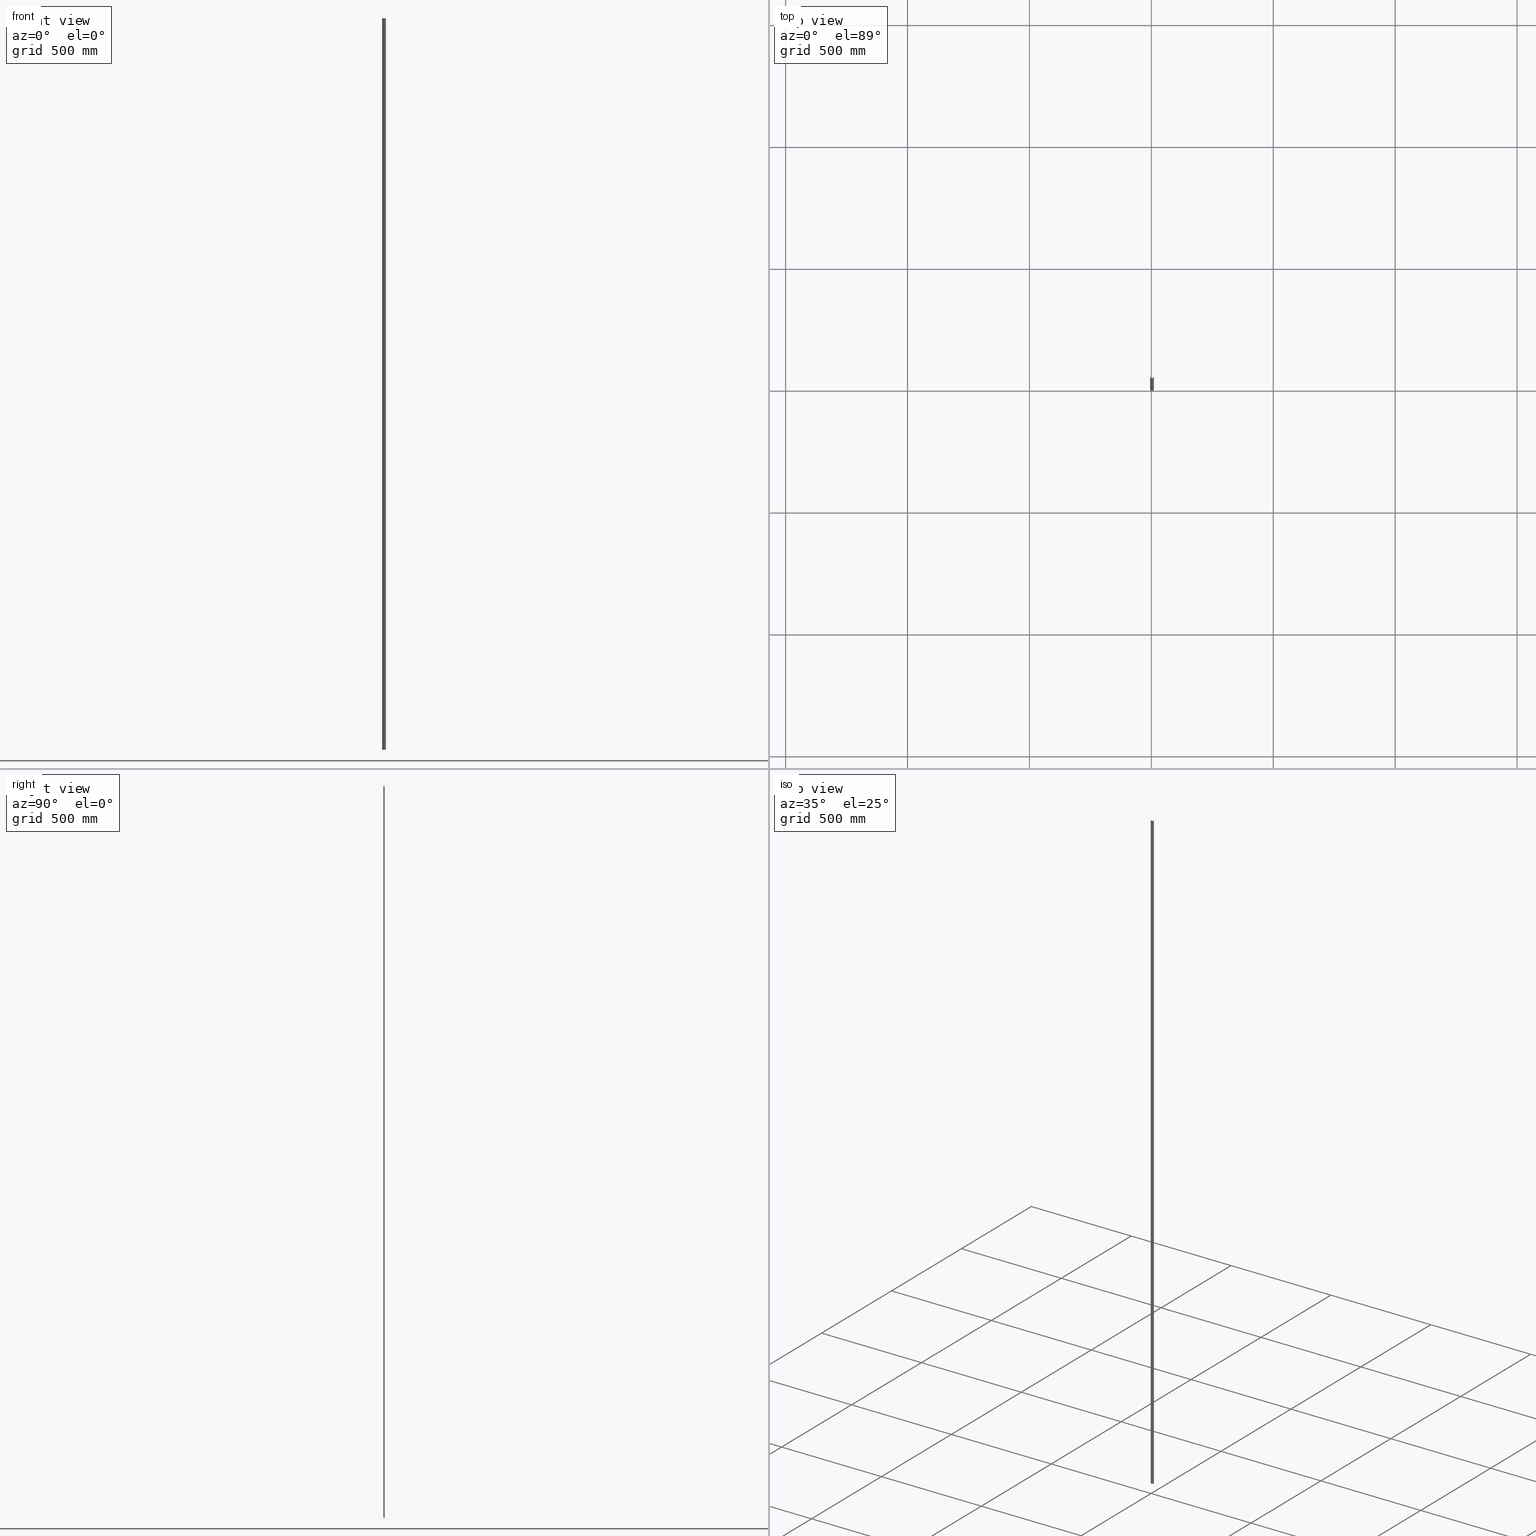
[diagram: canonical four-view strip — front | top / right | iso, engineering-drawing reading convention]
A machine part, canonical four-view strip (front | top / right | iso — engineering-drawing reading convention). The complete STEP part file that produces these views, byte-faithful:
ISO-10303-21;
HEADER;
FILE_DESCRIPTION (( 'STEP AP203' ),
    '1' );
FILE_NAME ('15x5,5 D�z Montaj Raylar� - 3 m.STEP',
    '2019-03-29T08:13:22',
    ( '' ),
    ( '' ),
    'SwSTEP 2.0',
    'SolidWorks 2011',
    '' );
FILE_SCHEMA (( 'CONFIG_CONTROL_DESIGN' ));
ENDSEC;

DATA;
#1 = PRODUCT_DEFINITION_SHAPE ( 'NONE', 'NONE',  #777 ) ;
#2 = UNCERTAINTY_MEASURE_WITH_UNIT (LENGTH_MEASURE( 1.000000000000000100E-005 ), #618, 'distance_accuracy_value', 'NONE');
#3 = DESIGN_CONTEXT ( 'detailed design', #123, 'design' ) ;
#4 = MANIFOLD_SOLID_BREP ( 'Y�kseklik-Ekstr�zyon1', #13 ) ;
#5 = PRODUCT ( '15x5,5 D�z Montaj Raylar� - 3 m', '15x5,5 D�z Montaj Raylar� - 3 m', '', ( #606 ) ) ;
#6 = VECTOR ( 'NONE', #392, 1000.000000000000000 ) ;
#7 = VECTOR ( 'NONE', #394, 1000.000000000000000 ) ;
#8 = CIRCLE ( 'NONE', #9, 1.500000000000339500 ) ;
#9 = AXIS2_PLACEMENT_3D ( 'NONE', #378, #383, #396 ) ;
#10 = CIRCLE ( 'NONE', #80, 2.500000000000150500 ) ;
#11 = VECTOR ( 'NONE', #359, 1000.000000000000000 ) ;
#12 = AXIS2_PLACEMENT_3D ( 'NONE', #357, #339, #323 ) ;
#13 = CLOSED_SHELL ( 'NONE', ( #743, #742, #767, #759, #747, #755, #765, #779, #748, #758, #763, #774, #752, #780, #753, #778, #762, #757, #766, #773, #749, #768 ) ) ;
#14 = AXIS2_PLACEMENT_3D ( 'NONE', #342, #354, #356 ) ;
#15 = CIRCLE ( 'NONE', #28, 2.200000000000120100 ) ;
#16 = VECTOR ( 'NONE', #365, 1000.000000000000000 ) ;
#17 = CIRCLE ( 'NONE', #20, 2.200000000000120100 ) ;
#18 = CIRCLE ( 'NONE', #12, 1.500000000000167000 ) ;
#19 = VECTOR ( 'NONE', #403, 1000.000000000000000 ) ;
#20 = AXIS2_PLACEMENT_3D ( 'NONE', #343, #346, #366 ) ;
#21 = CIRCLE ( 'NONE', #14, 1.200000000000588600 ) ;
#22 = CIRCLE ( 'NONE', #25, 1.500000000000339500 ) ;
#23 = VECTOR ( 'NONE', #324, 1000.000000000000000 ) ;
#24 = VECTOR ( 'NONE', #333, 1000.000000000000000 ) ;
#25 = AXIS2_PLACEMENT_3D ( 'NONE', #401, #380, #400 ) ;
#26 = CIRCLE ( 'NONE', #27, 1.500000000000167000 ) ;
#27 = AXIS2_PLACEMENT_3D ( 'NONE', #377, #416, #402 ) ;
#28 = AXIS2_PLACEMENT_3D ( 'NONE', #355, #330, #341 ) ;
#29 = VECTOR ( 'NONE', #379, 1000.000000000000000 ) ;
#30 = VECTOR ( 'NONE', #408, 1000.000000000000000 ) ;
#31 = VECTOR ( 'NONE', #388, 1000.000000000000000 ) ;
#32 = VECTOR ( 'NONE', #469, 1000.000000000000000 ) ;
#33 = VECTOR ( 'NONE', #454, 1000.000000000000000 ) ;
#34 = VECTOR ( 'NONE', #424, 1000.000000000000000 ) ;
#35 = VECTOR ( 'NONE', #423, 1000.000000000000000 ) ;
#36 = VECTOR ( 'NONE', #450, 1000.000000000000000 ) ;
#37 = VECTOR ( 'NONE', #483, 1000.000000000000000 ) ;
#38 = VECTOR ( 'NONE', #465, 1000.000000000000000 ) ;
#39 = VECTOR ( 'NONE', #410, 1000.000000000000000 ) ;
#40 = VECTOR ( 'NONE', #494, 1000.000000000000000 ) ;
#41 = VECTOR ( 'NONE', #409, 1000.000000000000000 ) ;
#42 = CIRCLE ( 'NONE', #65, 2.500000000000150500 ) ;
#43 = CIRCLE ( 'NONE', #53, 1.200000000000588600 ) ;
#44 = VECTOR ( 'NONE', #492, 1000.000000000000000 ) ;
#45 = AXIS2_PLACEMENT_3D ( 'NONE', #455, #449, #426 ) ;
#46 = VECTOR ( 'NONE', #485, 1000.000000000000000 ) ;
#47 = VECTOR ( 'NONE', #480, 1000.000000000000000 ) ;
#48 = VECTOR ( 'NONE', #531, 1000.000000000000000 ) ;
#49 = CIRCLE ( 'NONE', #68, 2.200000000000563300 ) ;
#50 = AXIS2_PLACEMENT_3D ( 'NONE', #486, #470, #491 ) ;
#51 = VECTOR ( 'NONE', #438, 1000.000000000000000 ) ;
#52 = VECTOR ( 'NONE', #451, 1000.000000000000000 ) ;
#53 = AXIS2_PLACEMENT_3D ( 'NONE', #462, #464, #503 ) ;
#54 = VECTOR ( 'NONE', #505, 1000.000000000000000 ) ;
#55 = AXIS2_PLACEMENT_3D ( 'NONE', #412, #395, #393 ) ;
#56 = VECTOR ( 'NONE', #440, 1000.000000000000000 ) ;
#57 = VECTOR ( 'NONE', #447, 1000.000000000000000 ) ;
#58 = VECTOR ( 'NONE', #439, 1000.000000000000000 ) ;
#59 = AXIS2_PLACEMENT_3D ( 'NONE', #442, #445, #473 ) ;
#60 = VECTOR ( 'NONE', #467, 1000.000000000000000 ) ;
#61 = VECTOR ( 'NONE', #398, 1000.000000000000000 ) ;
#62 = AXIS2_PLACEMENT_3D ( 'NONE', #437, #431, #422 ) ;
#63 = VECTOR ( 'NONE', #457, 1000.000000000000000 ) ;
#64 = CIRCLE ( 'NONE', #50, 1.200000000000089900 ) ;
#65 = AXIS2_PLACEMENT_3D ( 'NONE', #498, #477, #475 ) ;
#66 = VECTOR ( 'NONE', #474, 1000.000000000000000 ) ;
#67 = AXIS2_PLACEMENT_3D ( 'NONE', #511, #550, #543 ) ;
#68 = AXIS2_PLACEMENT_3D ( 'NONE', #517, #508, #540 ) ;
#69 = VECTOR ( 'NONE', #425, 1000.000000000000000 ) ;
#70 = VECTOR ( 'NONE', #452, 1000.000000000000000 ) ;
#71 = VECTOR ( 'NONE', #493, 1000.000000000000000 ) ;
#72 = VECTOR ( 'NONE', #529, 1000.000000000000000 ) ;
#73 = AXIS2_PLACEMENT_3D ( 'NONE', #522, #541, #516 ) ;
#74 = CIRCLE ( 'NONE', #45, 2.500000000000280700 ) ;
#75 = VECTOR ( 'NONE', #384, 1000.000000000000000 ) ;
#76 = CIRCLE ( 'NONE', #59, 1.200000000000089900 ) ;
#77 = CIRCLE ( 'NONE', #55, 2.200000000000563300 ) ;
#78 = CIRCLE ( 'NONE', #62, 2.500000000000280700 ) ;
#79 = VECTOR ( 'NONE', #499, 1000.000000000000000 ) ;
#80 = AXIS2_PLACEMENT_3D ( 'NONE', #381, #386, #404 ) ;
#81 = LOCAL_TIME ( 11, 13, 22.00000000000000000, #669 ) ;
#82 = APPROVAL_PERSON_ORGANIZATION ( #680, #771, #683 ) ;
#83 = LOCAL_TIME ( 11, 13, 22.00000000000000000, #655 ) ;
#84 = CC_DESIGN_APPROVAL ( #771, ( #96 ) ) ;
#85 = SECURITY_CLASSIFICATION ( '', '', #649 ) ;
#86 = AXIS2_PLACEMENT_3D ( 'NONE', #512, #545, #534 ) ;
#87 = VECTOR ( 'NONE', #620, 1000.000000000000000 ) ;
#88 = AXIS2_PLACEMENT_3D ( 'NONE', #583, #574, #575 ) ;
#89 = AXIS2_PLACEMENT_3D ( 'NONE', #520, #507, #559 ) ;
#90 = AXIS2_PLACEMENT_3D ( 'NONE', #530, #513, #547 ) ;
#91 = AXIS2_PLACEMENT_3D ( 'NONE', #555, #562, #563 ) ;
#92 = VECTOR ( 'NONE', #592, 1000.000000000000000 ) ;
#93 = VECTOR ( 'NONE', #634, 1000.000000000000000 ) ;
#94 = ORGANIZATION ( 'BEL�RT�LMEM��', 'BEL�RT�LMEM��', '' ) ;
#95 = AXIS2_PLACEMENT_3D ( 'NONE', #644, #633, #628 ) ;
#96 = PRODUCT_DEFINITION_FORMATION_WITH_SPECIFIED_SOURCE ( '     Herhangi', '', #5, .NOT_KNOWN. ) ;
#97 = LOCAL_TIME ( 11, 13, 22.00000000000000000, #674 ) ;
#98 = CC_DESIGN_APPROVAL ( #764, ( #777 ) ) ;
#99 = APPROVAL_PERSON_ORGANIZATION ( #670, #756, #656 ) ;
#100 = LOCAL_TIME ( 11, 13, 22.00000000000000000, #653 ) ;
#101 = AXIS2_PLACEMENT_3D ( 'NONE', #514, #504, #523 ) ;
#102 = VECTOR ( 'NONE', #597, 1000.000000000000000 ) ;
#103 = AXIS2_PLACEMENT_3D ( 'NONE', #600, #566, #557 ) ;
#104 = AXIS2_PLACEMENT_3D ( 'NONE', #612, #639, #646 ) ;
#105 = AXIS2_PLACEMENT_3D ( 'NONE', #558, #596, #602 ) ;
#106 = AXIS2_PLACEMENT_3D ( 'NONE', #587, #601, #585 ) ;
#107 = AXIS2_PLACEMENT_3D ( 'NONE', #598, #572, #565 ) ;
#108 =( GEOMETRIC_REPRESENTATION_CONTEXT ( 3 ) GLOBAL_UNCERTAINTY_ASSIGNED_CONTEXT ( ( #2 ) ) GLOBAL_UNIT_ASSIGNED_CONTEXT ( ( #618, #605, #625 ) ) REPRESENTATION_CONTEXT ( 'NONE', 'WORKASPACE' ) );
#109 = AXIS2_PLACEMENT_3D ( 'NONE', #539, #536, #542 ) ;
#110 = AXIS2_PLACEMENT_3D ( 'NONE', #607, #627, #637 ) ;
#111 = AXIS2_PLACEMENT_3D ( 'NONE', #535, #538, #519 ) ;
#112 = AXIS2_PLACEMENT_3D ( 'NONE', #560, #603, #589 ) ;
#113 = AXIS2_PLACEMENT_3D ( 'NONE', #564, #604, #595 ) ;
#114 = APPROVAL_PERSON_ORGANIZATION ( #631, #764, #652 ) ;
#115 = LOCAL_TIME ( 11, 13, 22.00000000000000000, #684 ) ;
#116 = AXIS2_PLACEMENT_3D ( 'NONE', #610, #624, #611 ) ;
#117 = AXIS2_PLACEMENT_3D ( 'NONE', #567, #582, #568 ) ;
#118 = AXIS2_PLACEMENT_3D ( 'NONE', #645, #608, #647 ) ;
#119 = AXIS2_PLACEMENT_3D ( 'NONE', #643, #642, #617 ) ;
#120 = CC_DESIGN_APPROVAL ( #756, ( #85 ) ) ;
#121 = CC_DESIGN_SECURITY_CLASSIFICATION ( #85, ( #96 ) ) ;
#122 = APPLICATION_CONTEXT ( 'configuration controlled 3d designs of mechanical parts and assemblies' ) ;
#123 = APPLICATION_CONTEXT ( 'configuration controlled 3d designs of mechanical parts and assemblies' ) ;
#124 = ORIENTED_EDGE ( 'NONE', *, *, #706, .F. ) ;
#125 = ORIENTED_EDGE ( 'NONE', *, *, #737, .F. ) ;
#126 = ORIENTED_EDGE ( 'NONE', *, *, #733, .T. ) ;
#127 = ORIENTED_EDGE ( 'NONE', *, *, #741, .F. ) ;
#128 = ORIENTED_EDGE ( 'NONE', *, *, #705, .F. ) ;
#129 = ORIENTED_EDGE ( 'NONE', *, *, #737, .T. ) ;
#130 = ORIENTED_EDGE ( 'NONE', *, *, #691, .T. ) ;
#131 = ORIENTED_EDGE ( 'NONE', *, *, #692, .T. ) ;
#132 = ORIENTED_EDGE ( 'NONE', *, *, #699, .F. ) ;
#133 = ORIENTED_EDGE ( 'NONE', *, *, #722, .T. ) ;
#134 = ORIENTED_EDGE ( 'NONE', *, *, #712, .T. ) ;
#135 = ORIENTED_EDGE ( 'NONE', *, *, #697, .T. ) ;
#136 = ORIENTED_EDGE ( 'NONE', *, *, #724, .T. ) ;
#137 = ORIENTED_EDGE ( 'NONE', *, *, #689, .T. ) ;
#138 = ORIENTED_EDGE ( 'NONE', *, *, #699, .T. ) ;
#139 = ORIENTED_EDGE ( 'NONE', *, *, #706, .T. ) ;
#140 = ORIENTED_EDGE ( 'NONE', *, *, #711, .F. ) ;
#141 = ORIENTED_EDGE ( 'NONE', *, *, #716, .T. ) ;
#142 = ORIENTED_EDGE ( 'NONE', *, *, #714, .T. ) ;
#143 = ORIENTED_EDGE ( 'NONE', *, *, #725, .F. ) ;
#144 = ORIENTED_EDGE ( 'NONE', *, *, #775, .F. ) ;
#145 = ORIENTED_EDGE ( 'NONE', *, *, #689, .F. ) ;
#146 = ORIENTED_EDGE ( 'NONE', *, *, #728, .F. ) ;
#147 = ORIENTED_EDGE ( 'NONE', *, *, #696, .T. ) ;
#148 = ORIENTED_EDGE ( 'NONE', *, *, #731, .T. ) ;
#149 = ORIENTED_EDGE ( 'NONE', *, *, #703, .T. ) ;
#150 = ORIENTED_EDGE ( 'NONE', *, *, #734, .F. ) ;
#151 = ORIENTED_EDGE ( 'NONE', *, *, #704, .F. ) ;
#152 = ORIENTED_EDGE ( 'NONE', *, *, #727, .T. ) ;
#153 = ORIENTED_EDGE ( 'NONE', *, *, #688, .T. ) ;
#154 = ORIENTED_EDGE ( 'NONE', *, *, #701, .F. ) ;
#155 = ORIENTED_EDGE ( 'NONE', *, *, #775, .T. ) ;
#156 = ORIENTED_EDGE ( 'NONE', *, *, #723, .F. ) ;
#157 = ORIENTED_EDGE ( 'NONE', *, *, #735, .T. ) ;
#158 = ORIENTED_EDGE ( 'NONE', *, *, #726, .F. ) ;
#159 = ORIENTED_EDGE ( 'NONE', *, *, #693, .F. ) ;
#160 = ORIENTED_EDGE ( 'NONE', *, *, #690, .T. ) ;
#161 = ORIENTED_EDGE ( 'NONE', *, *, #713, .T. ) ;
#162 = ORIENTED_EDGE ( 'NONE', *, *, #721, .T. ) ;
#163 = ORIENTED_EDGE ( 'NONE', *, *, #746, .F. ) ;
#164 = ORIENTED_EDGE ( 'NONE', *, *, #709, .T. ) ;
#165 = ORIENTED_EDGE ( 'NONE', *, *, #720, .F. ) ;
#166 = ORIENTED_EDGE ( 'NONE', *, *, #725, .T. ) ;
#167 = ORIENTED_EDGE ( 'NONE', *, *, #731, .F. ) ;
#168 = ORIENTED_EDGE ( 'NONE', *, *, #732, .F. ) ;
#169 = ORIENTED_EDGE ( 'NONE', *, *, #703, .F. ) ;
#170 = ORIENTED_EDGE ( 'NONE', *, *, #710, .T. ) ;
#171 = ORIENTED_EDGE ( 'NONE', *, *, #740, .T. ) ;
#172 = ORIENTED_EDGE ( 'NONE', *, *, #732, .T. ) ;
#173 = ORIENTED_EDGE ( 'NONE', *, *, #715, .F. ) ;
#174 = ORIENTED_EDGE ( 'NONE', *, *, #733, .F. ) ;
#175 = ORIENTED_EDGE ( 'NONE', *, *, #721, .F. ) ;
#176 = ORIENTED_EDGE ( 'NONE', *, *, #740, .F. ) ;
#177 = ORIENTED_EDGE ( 'NONE', *, *, #697, .F. ) ;
#178 = ORIENTED_EDGE ( 'NONE', *, *, #717, .F. ) ;
#179 = ORIENTED_EDGE ( 'NONE', *, *, #722, .F. ) ;
#180 = ORIENTED_EDGE ( 'NONE', *, *, #695, .T. ) ;
#181 = ORIENTED_EDGE ( 'NONE', *, *, #707, .T. ) ;
#182 = ORIENTED_EDGE ( 'NONE', *, *, #739, .T. ) ;
#183 = ORIENTED_EDGE ( 'NONE', *, *, #704, .T. ) ;
#184 = ORIENTED_EDGE ( 'NONE', *, *, #730, .F. ) ;
#185 = ORIENTED_EDGE ( 'NONE', *, *, #729, .T. ) ;
#186 = ORIENTED_EDGE ( 'NONE', *, *, #688, .F. ) ;
#187 = ORIENTED_EDGE ( 'NONE', *, *, #727, .F. ) ;
#188 = ORIENTED_EDGE ( 'NONE', *, *, #730, .T. ) ;
#189 = ORIENTED_EDGE ( 'NONE', *, *, #738, .T. ) ;
#190 = ORIENTED_EDGE ( 'NONE', *, *, #702, .F. ) ;
#191 = ORIENTED_EDGE ( 'NONE', *, *, #741, .T. ) ;
#192 = ORIENTED_EDGE ( 'NONE', *, *, #702, .T. ) ;
#193 = ORIENTED_EDGE ( 'NONE', *, *, #728, .T. ) ;
#194 = ORIENTED_EDGE ( 'NONE', *, *, #694, .F. ) ;
#195 = ORIENTED_EDGE ( 'NONE', *, *, #716, .F. ) ;
#196 = VERTEX_POINT ( 'NONE', #236 ) ;
#197 = ORIENTED_EDGE ( 'NONE', *, *, #700, .T. ) ;
#198 = VERTEX_POINT ( 'NONE', #310 ) ;
#199 = VERTEX_POINT ( 'NONE', #311 ) ;
#200 = ORIENTED_EDGE ( 'NONE', *, *, #781, .T. ) ;
#201 = ORIENTED_EDGE ( 'NONE', *, *, #694, .T. ) ;
#202 = ORIENTED_EDGE ( 'NONE', *, *, #781, .F. ) ;
#203 = ORIENTED_EDGE ( 'NONE', *, *, #693, .T. ) ;
#204 = ORIENTED_EDGE ( 'NONE', *, *, #736, .T. ) ;
#205 = ORIENTED_EDGE ( 'NONE', *, *, #726, .T. ) ;
#206 = ORIENTED_EDGE ( 'NONE', *, *, #698, .F. ) ;
#207 = ORIENTED_EDGE ( 'NONE', *, *, #711, .T. ) ;
#208 = ORIENTED_EDGE ( 'NONE', *, *, #734, .T. ) ;
#209 = ORIENTED_EDGE ( 'NONE', *, *, #761, .F. ) ;
#210 = ORIENTED_EDGE ( 'NONE', *, *, #723, .T. ) ;
#211 = ORIENTED_EDGE ( 'NONE', *, *, #696, .F. ) ;
#212 = ORIENTED_EDGE ( 'NONE', *, *, #708, .F. ) ;
#213 = ORIENTED_EDGE ( 'NONE', *, *, #692, .F. ) ;
#214 = ORIENTED_EDGE ( 'NONE', *, *, #717, .T. ) ;
#215 = ORIENTED_EDGE ( 'NONE', *, *, #735, .F. ) ;
#216 = ORIENTED_EDGE ( 'NONE', *, *, #760, .F. ) ;
#217 = ORIENTED_EDGE ( 'NONE', *, *, #691, .F. ) ;
#218 = ORIENTED_EDGE ( 'NONE', *, *, #695, .F. ) ;
#219 = ORIENTED_EDGE ( 'NONE', *, *, #739, .F. ) ;
#220 = ORIENTED_EDGE ( 'NONE', *, *, #705, .T. ) ;
#221 = ORIENTED_EDGE ( 'NONE', *, *, #709, .F. ) ;
#222 = VERTEX_POINT ( 'NONE', #264 ) ;
#223 = VERTEX_POINT ( 'NONE', #240 ) ;
#224 = VERTEX_POINT ( 'NONE', #309 ) ;
#225 = ORIENTED_EDGE ( 'NONE', *, *, #736, .F. ) ;
#226 = ORIENTED_EDGE ( 'NONE', *, *, #719, .T. ) ;
#227 = ORIENTED_EDGE ( 'NONE', *, *, #724, .F. ) ;
#228 = ORIENTED_EDGE ( 'NONE', *, *, #754, .F. ) ;
#229 = ORIENTED_EDGE ( 'NONE', *, *, #746, .T. ) ;
#230 = ORIENTED_EDGE ( 'NONE', *, *, #760, .T. ) ;
#231 = ORIENTED_EDGE ( 'NONE', *, *, #700, .F. ) ;
#232 = ORIENTED_EDGE ( 'NONE', *, *, #715, .T. ) ;
#233 = ORIENTED_EDGE ( 'NONE', *, *, #761, .T. ) ;
#234 = ORIENTED_EDGE ( 'NONE', *, *, #707, .F. ) ;
#235 = ORIENTED_EDGE ( 'NONE', *, *, #720, .T. ) ;
#236 = CARTESIAN_POINT ( 'NONE',  ( -3.700000000000881300, 5.300000000000766300, 3000.000000000000000 ) ) ;
#237 = ORIENTED_EDGE ( 'NONE', *, *, #701, .T. ) ;
#238 = ORIENTED_EDGE ( 'NONE', *, *, #718, .T. ) ;
#239 = ORIENTED_EDGE ( 'NONE', *, *, #690, .F. ) ;
#240 = CARTESIAN_POINT ( 'NONE',  ( 7.999999999999406700, 2.800000000000187700, 0.0000000000000000000 ) ) ;
#241 = VERTEX_POINT ( 'NONE', #270 ) ;
#242 = ORIENTED_EDGE ( 'NONE', *, *, #710, .F. ) ;
#243 = ORIENTED_EDGE ( 'NONE', *, *, #719, .F. ) ;
#244 = ORIENTED_EDGE ( 'NONE', *, *, #754, .T. ) ;
#245 = ORIENTED_EDGE ( 'NONE', *, *, #729, .F. ) ;
#246 = ORIENTED_EDGE ( 'NONE', *, *, #698, .T. ) ;
#247 = VERTEX_POINT ( 'NONE', #318 ) ;
#248 = VERTEX_POINT ( 'NONE', #317 ) ;
#249 = VERTEX_POINT ( 'NONE', #322 ) ;
#250 = VERTEX_POINT ( 'NONE', #319 ) ;
#251 = ORIENTED_EDGE ( 'NONE', *, *, #718, .F. ) ;
#252 = ORIENTED_EDGE ( 'NONE', *, *, #712, .F. ) ;
#253 = ORIENTED_EDGE ( 'NONE', *, *, #714, .F. ) ;
#254 = VERTEX_POINT ( 'NONE', #273 ) ;
#255 = ORIENTED_EDGE ( 'NONE', *, *, #713, .F. ) ;
#256 = ORIENTED_EDGE ( 'NONE', *, *, #708, .T. ) ;
#257 = VERTEX_POINT ( 'NONE', #259 ) ;
#258 = ORIENTED_EDGE ( 'NONE', *, *, #738, .F. ) ;
#259 = CARTESIAN_POINT ( 'NONE',  ( -2.500000000000290000, 3.100000000000202100, 0.0000000000000000000 ) ) ;
#260 = CARTESIAN_POINT ( 'NONE',  ( 5.499999999999274400, 1.299999999999964700, 3000.000000000000000 ) ) ;
#261 = VERTEX_POINT ( 'NONE', #260 ) ;
#262 = CARTESIAN_POINT ( 'NONE',  ( 10.24999999999941000, 5.300000000000008700, 0.0000000000000000000 ) ) ;
#263 = CARTESIAN_POINT ( 'NONE',  ( -4.750000000000827800, 4.300000000000787600, 0.0000000000000000000 ) ) ;
#264 = CARTESIAN_POINT ( 'NONE',  ( 7.999999999999388000, 3.100000000000240800, 3000.000000000000000 ) ) ;
#265 = VERTEX_POINT ( 'NONE', #347 ) ;
#266 = EDGE_LOOP ( 'NONE', ( #256, #245, #225, #205 ) ) ;
#267 = EDGE_LOOP ( 'NONE', ( #160, #168, #184, #175 ) ) ;
#268 = EDGE_LOOP ( 'NONE', ( #216, #167, #163, #166 ) ) ;
#269 = EDGE_LOOP ( 'NONE', ( #190, #244, #208, #210 ) ) ;
#270 = CARTESIAN_POINT ( 'NONE',  ( 7.999999999999386300, 3.099999999999913500, 0.0000000000000000000 ) ) ;
#271 = EDGE_LOOP ( 'NONE', ( #169, #188, #191, #193 ) ) ;
#272 = CARTESIAN_POINT ( 'NONE',  ( 9.199999999999475300, 4.300000000000003400, 0.0000000000000000000 ) ) ;
#273 = CARTESIAN_POINT ( 'NONE',  ( -8.443996105043881800E-015, 0.2999999999999995400, 0.0000000000000000000 ) ) ;
#274 = VERTEX_POINT ( 'NONE', #262 ) ;
#275 = VERTEX_POINT ( 'NONE', #362 ) ;
#276 = VERTEX_POINT ( 'NONE', #263 ) ;
#277 = VERTEX_POINT ( 'NONE', #348 ) ;
#278 = VERTEX_POINT ( 'NONE', #331 ) ;
#279 = EDGE_LOOP ( 'NONE', ( #258, #229, #234, #156 ) ) ;
#280 = VERTEX_POINT ( 'NONE', #272 ) ;
#281 = EDGE_LOOP ( 'NONE', ( #161, #194, #128, #129 ) ) ;
#282 = VERTEX_POINT ( 'NONE', #368 ) ;
#283 = VERTEX_POINT ( 'NONE', #335 ) ;
#284 = VERTEX_POINT ( 'NONE', #371 ) ;
#285 = EDGE_LOOP ( 'NONE', ( #251, #218, #230, #217 ) ) ;
#286 = VERTEX_POINT ( 'NONE', #363 ) ;
#287 = EDGE_LOOP ( 'NONE', ( #197, #221, #232, #124 ) ) ;
#288 = VERTEX_POINT ( 'NONE', #336 ) ;
#289 = EDGE_LOOP ( 'NONE', ( #239, #177, #212, #237 ) ) ;
#290 = VERTEX_POINT ( 'NONE', #325 ) ;
#291 = VERTEX_POINT ( 'NONE', #340 ) ;
#292 = VERTEX_POINT ( 'NONE', #328 ) ;
#293 = EDGE_LOOP ( 'NONE', ( #178, #142, #192, #181, #148, #180, #136, #133, #131, #152, #147, #185, #135, #162, #149, #138, #164, #182, #201, #157 ) ) ;
#294 = EDGE_LOOP ( 'NONE', ( #235, #227, #238, #242 ) ) ;
#295 = EDGE_LOOP ( 'NONE', ( #209, #179, #165, #151 ) ) ;
#296 = EDGE_LOOP ( 'NONE', ( #213, #233, #203, #202 ) ) ;
#297 = VERTEX_POINT ( 'NONE', #349 ) ;
#298 = VERTEX_POINT ( 'NONE', #326 ) ;
#299 = VERTEX_POINT ( 'NONE', #337 ) ;
#300 = VERTEX_POINT ( 'NONE', #361 ) ;
#301 = VERTEX_POINT ( 'NONE', #327 ) ;
#302 = VERTEX_POINT ( 'NONE', #367 ) ;
#303 = EDGE_LOOP ( 'NONE', ( #214, #246, #207, #155 ) ) ;
#304 = EDGE_LOOP ( 'NONE', ( #204, #211, #243, #153 ) ) ;
#305 = EDGE_LOOP ( 'NONE', ( #220, #219, #231, #195 ) ) ;
#306 = EDGE_LOOP ( 'NONE', ( #228, #253, #144, #176 ) ) ;
#307 = EDGE_LOOP ( 'NONE', ( #154, #158, #186, #137, #159, #183, #170, #130, #143, #189, #150, #171, #140, #134, #125, #141, #139, #126, #127, #172 ) ) ;
#308 = EDGE_LOOP ( 'NONE', ( #206, #215, #255, #252 ) ) ;
#309 = CARTESIAN_POINT ( 'NONE',  ( -8.443996105043881800E-015, 0.2999999999999995400, 3000.000000000000000 ) ) ;
#310 = CARTESIAN_POINT ( 'NONE',  ( -2.500000000000289500, 2.800000000000279600, 0.0000000000000000000 ) ) ;
#311 = CARTESIAN_POINT ( 'NONE',  ( 5.499999999999335600, 0.3000000000000186400, 3000.000000000000000 ) ) ;
#312 = VERTEX_POINT ( 'NONE', #338 ) ;
#313 = VERTEX_POINT ( 'NONE', #370 ) ;
#314 = EDGE_LOOP ( 'NONE', ( #173, #132, #146, #174 ) ) ;
#315 = EDGE_LOOP ( 'NONE', ( #187, #200, #145, #226 ) ) ;
#316 = VERTEX_POINT ( 'NONE', #344 ) ;
#317 = CARTESIAN_POINT ( 'NONE',  ( -2.500000000000290000, 3.100000000000202100, 3000.000000000000000 ) ) ;
#318 = CARTESIAN_POINT ( 'NONE',  ( -8.673617379884035500E-015, 1.299999999999908800, 0.0000000000000000000 ) ) ;
#319 = CARTESIAN_POINT ( 'NONE',  ( -1.500000000000317100, 2.800000000000240500, 3000.000000000000000 ) ) ;
#320 = VERTEX_POINT ( 'NONE', #345 ) ;
#321 = VERTEX_POINT ( 'NONE', #350 ) ;
#322 = CARTESIAN_POINT ( 'NONE',  ( 5.499999999999274400, 1.299999999999964700, 0.0000000000000000000 ) ) ;
#323 = DIRECTION ( 'NONE',  ( -1.000000000000000000, 0.0000000000000000000, 0.0000000000000000000 ) ) ;
#324 = DIRECTION ( 'NONE',  ( -0.0000000000000000000, -0.0000000000000000000, -1.000000000000000000 ) ) ;
#325 = CARTESIAN_POINT ( 'NONE',  ( -4.750000000000827800, 5.300000000000765400, 3000.000000000000000 ) ) ;
#326 = CARTESIAN_POINT ( 'NONE',  ( 6.999999999999342700, 3.099999999999913500, 0.0000000000000000000 ) ) ;
#327 = CARTESIAN_POINT ( 'NONE',  ( -4.750000000000827800, 5.300000000000765400, 0.0000000000000000000 ) ) ;
#328 = CARTESIAN_POINT ( 'NONE',  ( -1.500000000000317500, 3.100000000000204800, 0.0000000000000000000 ) ) ;
#329 = CARTESIAN_POINT ( 'NONE',  ( 9.199999999999475300, 4.300000000000003400, 0.0000000000000000000 ) ) ;
#330 = DIRECTION ( 'NONE',  ( 0.0000000000000000000, 0.0000000000000000000, 1.000000000000000000 ) ) ;
#331 = CARTESIAN_POINT ( 'NONE',  ( -8.673617379884035500E-015, 1.299999999999908800, 3000.000000000000000 ) ) ;
#332 = LINE ( 'NONE', #358, #24 ) ;
#333 = DIRECTION ( 'NONE',  ( 0.0000000000000000000, 1.000000000000000000, 0.0000000000000000000 ) ) ;
#334 = LINE ( 'NONE', #364, #23 ) ;
#335 = CARTESIAN_POINT ( 'NONE',  ( -1.500000000000317500, 3.100000000000204800, 3000.000000000000000 ) ) ;
#336 = CARTESIAN_POINT ( 'NONE',  ( 6.999999999999385400, 2.800000000000079300, 3000.000000000000000 ) ) ;
#337 = CARTESIAN_POINT ( 'NONE',  ( 6.999999999999342700, 3.099999999999913500, 3000.000000000000000 ) ) ;
#338 = CARTESIAN_POINT ( 'NONE',  ( -3.700000000000355900, 4.300000000000789400, 0.0000000000000000000 ) ) ;
#339 = DIRECTION ( 'NONE',  ( -0.0000000000000000000, -0.0000000000000000000, -1.000000000000000000 ) ) ;
#340 = CARTESIAN_POINT ( 'NONE',  ( 9.199999999999475300, 4.300000000000003400, 3000.000000000000000 ) ) ;
#341 = DIRECTION ( 'NONE',  ( -1.000000000000000000, 0.0000000000000000000, 0.0000000000000000000 ) ) ;
#342 = CARTESIAN_POINT ( 'NONE',  ( -3.700000000000881300, 3.100000000000202100, 3000.000000000000000 ) ) ;
#343 = CARTESIAN_POINT ( 'NONE',  ( 9.199999999999475300, 3.099999999999913500, 0.0000000000000000000 ) ) ;
#344 = CARTESIAN_POINT ( 'NONE',  ( -3.700000000000881300, 5.300000000000766300, 0.0000000000000000000 ) ) ;
#345 = CARTESIAN_POINT ( 'NONE',  ( 10.24999999999941000, 4.300000000000003400, 0.0000000000000000000 ) ) ;
#346 = DIRECTION ( 'NONE',  ( 0.0000000000000000000, 0.0000000000000000000, 1.000000000000000000 ) ) ;
#347 = CARTESIAN_POINT ( 'NONE',  ( -3.700000000000355900, 4.300000000000789400, 3000.000000000000000 ) ) ;
#348 = CARTESIAN_POINT ( 'NONE',  ( -2.500000000000290000, 2.800000000000240500, 3000.000000000000000 ) ) ;
#349 = CARTESIAN_POINT ( 'NONE',  ( 10.24999999999941000, 5.300000000000008700, 3000.000000000000000 ) ) ;
#350 = CARTESIAN_POINT ( 'NONE',  ( 6.999999999999385400, 2.800000000000079300, 0.0000000000000000000 ) ) ;
#351 = LINE ( 'NONE', #353, #11 ) ;
#352 = LINE ( 'NONE', #329, #16 ) ;
#353 = CARTESIAN_POINT ( 'NONE',  ( 9.199999999999475300, 4.300000000000003400, 3000.000000000000000 ) ) ;
#354 = DIRECTION ( 'NONE',  ( -0.0000000000000000000, -0.0000000000000000000, -1.000000000000000000 ) ) ;
#355 = CARTESIAN_POINT ( 'NONE',  ( 9.199999999999475300, 3.099999999999913500, 3000.000000000000000 ) ) ;
#356 = DIRECTION ( 'NONE',  ( -1.000000000000000000, 0.0000000000000000000, 0.0000000000000000000 ) ) ;
#357 = CARTESIAN_POINT ( 'NONE',  ( 5.499999999999274400, 2.800000000000187700, 0.0000000000000000000 ) ) ;
#358 = CARTESIAN_POINT ( 'NONE',  ( 6.999999999999329400, 3.399999999999913300, 0.0000000000000000000 ) ) ;
#359 = DIRECTION ( 'NONE',  ( 1.000000000000000000, 0.0000000000000000000, -0.0000000000000000000 ) ) ;
#360 = LINE ( 'NONE', #389, #7 ) ;
#361 = CARTESIAN_POINT ( 'NONE',  ( -1.500000000000317100, 2.800000000000240500, 0.0000000000000000000 ) ) ;
#362 = CARTESIAN_POINT ( 'NONE',  ( 7.999999999999406700, 2.800000000000187700, 3000.000000000000000 ) ) ;
#363 = CARTESIAN_POINT ( 'NONE',  ( 9.199999999999445100, 5.300000000000021100, 3000.000000000000000 ) ) ;
#364 = CARTESIAN_POINT ( 'NONE',  ( -1.500000000000348200, 2.800000000000279600, 3000.000000000000000 ) ) ;
#365 = DIRECTION ( 'NONE',  ( -1.000000000000000000, -0.0000000000000000000, 0.0000000000000000000 ) ) ;
#366 = DIRECTION ( 'NONE',  ( -1.000000000000000000, 0.0000000000000000000, 0.0000000000000000000 ) ) ;
#367 = CARTESIAN_POINT ( 'NONE',  ( 10.24999999999941000, 4.300000000000003400, 3000.000000000000000 ) ) ;
#368 = CARTESIAN_POINT ( 'NONE',  ( 5.499999999999335600, 0.3000000000000186400, 0.0000000000000000000 ) ) ;
#369 = LINE ( 'NONE', #407, #19 ) ;
#370 = CARTESIAN_POINT ( 'NONE',  ( -4.750000000000827800, 4.300000000000787600, 3000.000000000000000 ) ) ;
#371 = CARTESIAN_POINT ( 'NONE',  ( 9.199999999999445100, 5.300000000000021100, 0.0000000000000000000 ) ) ;
#372 = CARTESIAN_POINT ( 'NONE',  ( -4.750000000000827800, 4.300000000000787600, 3000.000000000000000 ) ) ;
#373 = LINE ( 'NONE', #376, #30 ) ;
#374 = LINE ( 'NONE', #415, #61 ) ;
#375 = LINE ( 'NONE', #405, #41 ) ;
#376 = CARTESIAN_POINT ( 'NONE',  ( -3.699999999999830100, 4.300000000000791200, 3000.000000000000000 ) ) ;
#377 = CARTESIAN_POINT ( 'NONE',  ( 5.499999999999274400, 2.800000000000187700, 3000.000000000000000 ) ) ;
#378 = CARTESIAN_POINT ( 'NONE',  ( -8.673617379884035500E-015, 2.800000000000279600, 0.0000000000000000000 ) ) ;
#379 = DIRECTION ( 'NONE',  ( 1.000000000000000000, 0.0000000000000000000, 0.0000000000000000000 ) ) ;
#380 = DIRECTION ( 'NONE',  ( -0.0000000000000000000, -0.0000000000000000000, -1.000000000000000000 ) ) ;
#381 = CARTESIAN_POINT ( 'NONE',  ( 5.499999999999274400, 2.800000000000187700, 3000.000000000000000 ) ) ;
#382 = CARTESIAN_POINT ( 'NONE',  ( 7.999999999999388000, 2.800000000000187700, 3000.000000000000000 ) ) ;
#383 = DIRECTION ( 'NONE',  ( -0.0000000000000000000, -0.0000000000000000000, -1.000000000000000000 ) ) ;
#384 = DIRECTION ( 'NONE',  ( 0.0000000000000000000, 1.000000000000000000, -0.0000000000000000000 ) ) ;
#385 = CARTESIAN_POINT ( 'NONE',  ( -4.750000000000827800, 5.300000000000765400, 3000.000000000000000 ) ) ;
#386 = DIRECTION ( 'NONE',  ( 0.0000000000000000000, 0.0000000000000000000, 1.000000000000000000 ) ) ;
#387 = LINE ( 'NONE', #399, #29 ) ;
#388 = DIRECTION ( 'NONE',  ( -0.0000000000000000000, -1.000000000000000000, -0.0000000000000000000 ) ) ;
#389 = CARTESIAN_POINT ( 'NONE',  ( -2.500000000000289100, 2.800000000000279600, 3000.000000000000000 ) ) ;
#390 = LINE ( 'NONE', #411, #34 ) ;
#391 = LINE ( 'NONE', #372, #6 ) ;
#392 = DIRECTION ( 'NONE',  ( 0.0000000000000000000, -0.0000000000000000000, 1.000000000000000000 ) ) ;
#393 = DIRECTION ( 'NONE',  ( -1.000000000000000000, 0.0000000000000000000, 0.0000000000000000000 ) ) ;
#394 = DIRECTION ( 'NONE',  ( -0.0000000000000000000, -0.0000000000000000000, -1.000000000000000000 ) ) ;
#395 = DIRECTION ( 'NONE',  ( 0.0000000000000000000, 0.0000000000000000000, 1.000000000000000000 ) ) ;
#396 = DIRECTION ( 'NONE',  ( -1.000000000000000000, 0.0000000000000000000, 0.0000000000000000000 ) ) ;
#397 = LINE ( 'NONE', #406, #39 ) ;
#398 = DIRECTION ( 'NONE',  ( -0.0000000000000000000, 0.0000000000000000000, 1.000000000000000000 ) ) ;
#399 = CARTESIAN_POINT ( 'NONE',  ( 10.24999999999941000, 5.300000000000007800, 0.0000000000000000000 ) ) ;
#400 = DIRECTION ( 'NONE',  ( -1.000000000000000000, 0.0000000000000000000, 0.0000000000000000000 ) ) ;
#401 = CARTESIAN_POINT ( 'NONE',  ( -8.673617379884035500E-015, 2.800000000000279600, 3000.000000000000000 ) ) ;
#402 = DIRECTION ( 'NONE',  ( -1.000000000000000000, 0.0000000000000000000, 0.0000000000000000000 ) ) ;
#403 = DIRECTION ( 'NONE',  ( -1.000000000000000000, -0.0000000000000000000, -0.0000000000000000000 ) ) ;
#404 = DIRECTION ( 'NONE',  ( -1.000000000000000000, 0.0000000000000000000, 0.0000000000000000000 ) ) ;
#405 = CARTESIAN_POINT ( 'NONE',  ( -4.750000000000827800, 5.300000000000765400, 0.0000000000000000000 ) ) ;
#406 = CARTESIAN_POINT ( 'NONE',  ( 10.24999999999941000, 4.300000000000003400, 0.0000000000000000000 ) ) ;
#407 = CARTESIAN_POINT ( 'NONE',  ( -3.700000000000881300, 5.300000000000765400, 3000.000000000000000 ) ) ;
#408 = DIRECTION ( 'NONE',  ( 0.0000000000000000000, 0.0000000000000000000, 1.000000000000000000 ) ) ;
#409 = DIRECTION ( 'NONE',  ( 0.0000000000000000000, 1.000000000000000000, 0.0000000000000000000 ) ) ;
#410 = DIRECTION ( 'NONE',  ( -0.0000000000000000000, -1.000000000000000000, 0.0000000000000000000 ) ) ;
#411 = CARTESIAN_POINT ( 'NONE',  ( -2.500000000000290000, 3.100000000000202100, 0.0000000000000000000 ) ) ;
#412 = CARTESIAN_POINT ( 'NONE',  ( -3.700000000000881300, 3.100000000000202100, 3000.000000000000000 ) ) ;
#413 = LINE ( 'NONE', #385, #31 ) ;
#414 = LINE ( 'NONE', #382, #75 ) ;
#415 = CARTESIAN_POINT ( 'NONE',  ( -8.673617379884035500E-015, 1.299999999999908800, 3000.000000000000000 ) ) ;
#416 = DIRECTION ( 'NONE',  ( -0.0000000000000000000, -0.0000000000000000000, -1.000000000000000000 ) ) ;
#417 = CARTESIAN_POINT ( 'NONE',  ( 10.24999999999941000, 5.300000000000007800, 3000.000000000000000 ) ) ;
#418 = LINE ( 'NONE', #419, #63 ) ;
#419 = CARTESIAN_POINT ( 'NONE',  ( -4.750000000000827800, 5.300000000000765400, 3000.000000000000000 ) ) ;
#420 = LINE ( 'NONE', #482, #66 ) ;
#421 = CARTESIAN_POINT ( 'NONE',  ( 6.999999999999441300, 2.799999999999971000, 3000.000000000000000 ) ) ;
#422 = DIRECTION ( 'NONE',  ( -1.000000000000000000, 0.0000000000000000000, 0.0000000000000000000 ) ) ;
#423 = DIRECTION ( 'NONE',  ( 0.0000000000000000000, 1.000000000000000000, -0.0000000000000000000 ) ) ;
#424 = DIRECTION ( 'NONE',  ( 0.0000000000000000000, 1.000000000000000000, 0.0000000000000000000 ) ) ;
#425 = DIRECTION ( 'NONE',  ( -0.0000000000000000000, -0.0000000000000000000, 1.000000000000000000 ) ) ;
#426 = DIRECTION ( 'NONE',  ( -1.000000000000000000, 0.0000000000000000000, 0.0000000000000000000 ) ) ;
#427 = CARTESIAN_POINT ( 'NONE',  ( -3.700000000000881300, 0.2999999999999999900, 3000.000000000000000 ) ) ;
#428 = CARTESIAN_POINT ( 'NONE',  ( -2.500000000000290000, 3.100000000000202100, 3000.000000000000000 ) ) ;
#429 = LINE ( 'NONE', #421, #57 ) ;
#430 = LINE ( 'NONE', #446, #36 ) ;
#431 = DIRECTION ( 'NONE',  ( -0.0000000000000000000, -0.0000000000000000000, -1.000000000000000000 ) ) ;
#432 = LINE ( 'NONE', #443, #56 ) ;
#433 = CARTESIAN_POINT ( 'NONE',  ( -1.500000000000317100, 3.100000000000208400, 3000.000000000000000 ) ) ;
#434 = LINE ( 'NONE', #453, #40 ) ;
#435 = CARTESIAN_POINT ( 'NONE',  ( 10.24999999999941000, 5.300000000000007800, 3000.000000000000000 ) ) ;
#436 = LINE ( 'NONE', #417, #58 ) ;
#437 = CARTESIAN_POINT ( 'NONE',  ( -8.673617379884035500E-015, 2.800000000000279600, 3000.000000000000000 ) ) ;
#438 = DIRECTION ( 'NONE',  ( 1.000000000000000000, 0.0000000000000000000, -0.0000000000000000000 ) ) ;
#439 = DIRECTION ( 'NONE',  ( -0.0000000000000000000, 0.0000000000000000000, 1.000000000000000000 ) ) ;
#440 = DIRECTION ( 'NONE',  ( 0.0000000000000000000, 0.0000000000000000000, 1.000000000000000000 ) ) ;
#441 = LINE ( 'NONE', #433, #35 ) ;
#442 = CARTESIAN_POINT ( 'NONE',  ( 9.199999999999475300, 3.099999999999913500, 0.0000000000000000000 ) ) ;
#443 = CARTESIAN_POINT ( 'NONE',  ( 7.999999999999424500, 2.800000000000188100, 3000.000000000000000 ) ) ;
#444 = LINE ( 'NONE', #435, #33 ) ;
#445 = DIRECTION ( 'NONE',  ( -0.0000000000000000000, -0.0000000000000000000, -1.000000000000000000 ) ) ;
#446 = CARTESIAN_POINT ( 'NONE',  ( 10.24999999999941000, 4.300000000000003400, 3000.000000000000000 ) ) ;
#447 = DIRECTION ( 'NONE',  ( 0.0000000000000000000, 0.0000000000000000000, 1.000000000000000000 ) ) ;
#448 = CARTESIAN_POINT ( 'NONE',  ( -4.750000000000827800, 4.300000000000787600, 0.0000000000000000000 ) ) ;
#449 = DIRECTION ( 'NONE',  ( 0.0000000000000000000, 0.0000000000000000000, 1.000000000000000000 ) ) ;
#450 = DIRECTION ( 'NONE',  ( 0.0000000000000000000, 1.000000000000000000, -0.0000000000000000000 ) ) ;
#451 = DIRECTION ( 'NONE',  ( -1.000000000000000000, -0.0000000000000000000, 0.0000000000000000000 ) ) ;
#452 = DIRECTION ( 'NONE',  ( -0.0000000000000000000, 0.0000000000000000000, -1.000000000000000000 ) ) ;
#453 = CARTESIAN_POINT ( 'NONE',  ( 5.499999999999274400, 1.299999999999908800, 0.0000000000000000000 ) ) ;
#454 = DIRECTION ( 'NONE',  ( -1.000000000000000000, -0.0000000000000000000, -0.0000000000000000000 ) ) ;
#455 = CARTESIAN_POINT ( 'NONE',  ( -8.673617379884035500E-015, 2.800000000000279600, 0.0000000000000000000 ) ) ;
#456 = LINE ( 'NONE', #428, #69 ) ;
#457 = DIRECTION ( 'NONE',  ( 0.0000000000000000000, -0.0000000000000000000, -1.000000000000000000 ) ) ;
#458 = LINE ( 'NONE', #460, #70 ) ;
#459 = LINE ( 'NONE', #448, #52 ) ;
#460 = CARTESIAN_POINT ( 'NONE',  ( 10.24999999999941000, 4.300000000000003400, 3000.000000000000000 ) ) ;
#461 = LINE ( 'NONE', #427, #51 ) ;
#462 = CARTESIAN_POINT ( 'NONE',  ( -3.700000000000881300, 3.100000000000202100, 0.0000000000000000000 ) ) ;
#463 = LINE ( 'NONE', #466, #32 ) ;
#464 = DIRECTION ( 'NONE',  ( -0.0000000000000000000, -0.0000000000000000000, -1.000000000000000000 ) ) ;
#465 = DIRECTION ( 'NONE',  ( -0.0000000000000000000, -1.000000000000000000, -0.0000000000000000000 ) ) ;
#466 = CARTESIAN_POINT ( 'NONE',  ( -4.750000000000827800, 4.300000000000787600, 3000.000000000000000 ) ) ;
#467 = DIRECTION ( 'NONE',  ( -0.0000000000000000000, -1.000000000000000000, -0.0000000000000000000 ) ) ;
#468 = CARTESIAN_POINT ( 'NONE',  ( 7.999999999999388000, 2.800000000000187700, 0.0000000000000000000 ) ) ;
#469 = DIRECTION ( 'NONE',  ( 1.000000000000000000, 0.0000000000000000000, -0.0000000000000000000 ) ) ;
#470 = DIRECTION ( 'NONE',  ( -0.0000000000000000000, -0.0000000000000000000, -1.000000000000000000 ) ) ;
#471 = CARTESIAN_POINT ( 'NONE',  ( -3.700000000000881300, 0.2999999999999999900, 0.0000000000000000000 ) ) ;
#472 = CARTESIAN_POINT ( 'NONE',  ( 6.999999999999329400, 3.399999999999913300, 3000.000000000000000 ) ) ;
#473 = DIRECTION ( 'NONE',  ( -1.000000000000000000, 0.0000000000000000000, 0.0000000000000000000 ) ) ;
#474 = DIRECTION ( 'NONE',  ( -1.000000000000000000, -0.0000000000000000000, 0.0000000000000000000 ) ) ;
#475 = DIRECTION ( 'NONE',  ( -1.000000000000000000, 0.0000000000000000000, 0.0000000000000000000 ) ) ;
#476 = LINE ( 'NONE', #487, #37 ) ;
#477 = DIRECTION ( 'NONE',  ( 0.0000000000000000000, 0.0000000000000000000, 1.000000000000000000 ) ) ;
#478 = CARTESIAN_POINT ( 'NONE',  ( -2.500000000000290000, 3.100000000000202100, 3000.000000000000000 ) ) ;
#479 = LINE ( 'NONE', #481, #44 ) ;
#480 = DIRECTION ( 'NONE',  ( -0.0000000000000000000, -1.000000000000000000, 0.0000000000000000000 ) ) ;
#481 = CARTESIAN_POINT ( 'NONE',  ( -3.700000000000881300, 5.300000000000766300, 3000.000000000000000 ) ) ;
#482 = CARTESIAN_POINT ( 'NONE',  ( -3.700000000000881300, 1.299999999999908800, 3000.000000000000000 ) ) ;
#483 = DIRECTION ( 'NONE',  ( -0.0000000000000000000, -1.000000000000000000, 0.0000000000000000000 ) ) ;
#484 = LINE ( 'NONE', #471, #48 ) ;
#485 = DIRECTION ( 'NONE',  ( 1.000000000000000000, 0.0000000000000000000, 0.0000000000000000000 ) ) ;
#486 = CARTESIAN_POINT ( 'NONE',  ( 9.199999999999475300, 3.099999999999913500, 3000.000000000000000 ) ) ;
#487 = CARTESIAN_POINT ( 'NONE',  ( -1.500000000000317100, 3.100000000000208400, 0.0000000000000000000 ) ) ;
#488 = LINE ( 'NONE', #502, #46 ) ;
#489 = LINE ( 'NONE', #490, #79 ) ;
#490 = CARTESIAN_POINT ( 'NONE',  ( -1.500000000000318000, 3.100000000000207900, 3000.000000000000000 ) ) ;
#491 = DIRECTION ( 'NONE',  ( -1.000000000000000000, 0.0000000000000000000, 0.0000000000000000000 ) ) ;
#492 = DIRECTION ( 'NONE',  ( 0.0000000000000000000, 0.0000000000000000000, 1.000000000000000000 ) ) ;
#493 = DIRECTION ( 'NONE',  ( 0.0000000000000000000, 0.0000000000000000000, 1.000000000000000000 ) ) ;
#494 = DIRECTION ( 'NONE',  ( -1.000000000000000000, -0.0000000000000000000, -0.0000000000000000000 ) ) ;
#495 = LINE ( 'NONE', #472, #60 ) ;
#496 = LINE ( 'NONE', #478, #38 ) ;
#497 = LINE ( 'NONE', #468, #47 ) ;
#498 = CARTESIAN_POINT ( 'NONE',  ( 5.499999999999274400, 2.800000000000187700, 0.0000000000000000000 ) ) ;
#499 = DIRECTION ( 'NONE',  ( -0.0000000000000000000, -0.0000000000000000000, -1.000000000000000000 ) ) ;
#500 = LINE ( 'NONE', #501, #71 ) ;
#501 = CARTESIAN_POINT ( 'NONE',  ( 5.499999999999274400, 1.300000000000020700, 3000.000000000000000 ) ) ;
#502 = CARTESIAN_POINT ( 'NONE',  ( -3.700000000000881300, 5.300000000000765400, 0.0000000000000000000 ) ) ;
#503 = DIRECTION ( 'NONE',  ( -1.000000000000000000, 0.0000000000000000000, 0.0000000000000000000 ) ) ;
#504 = DIRECTION ( 'NONE',  ( 1.000000000000000000, -0.0000000000000000000, 0.0000000000000000000 ) ) ;
#505 = DIRECTION ( 'NONE',  ( -0.0000000000000000000, -0.0000000000000000000, -1.000000000000000000 ) ) ;
#506 = FACE_OUTER_BOUND ( 'NONE', #269, .T. ) ;
#507 = DIRECTION ( 'NONE',  ( 0.0000000000000000000, 0.0000000000000000000, 1.000000000000000000 ) ) ;
#508 = DIRECTION ( 'NONE',  ( 0.0000000000000000000, 0.0000000000000000000, 1.000000000000000000 ) ) ;
#509 = PLANE ( 'NONE',  #109 ) ;
#510 = FACE_OUTER_BOUND ( 'NONE', #287, .T. ) ;
#511 = CARTESIAN_POINT ( 'NONE',  ( -4.750000000000827800, 5.300000000000765400, 3000.000000000000000 ) ) ;
#512 = CARTESIAN_POINT ( 'NONE',  ( -2.500000000000290000, 3.100000000000202100, 3000.000000000000000 ) ) ;
#513 = DIRECTION ( 'NONE',  ( -0.0000000000000000000, -0.0000000000000000000, -1.000000000000000000 ) ) ;
#514 = CARTESIAN_POINT ( 'NONE',  ( 6.999999999999329400, 3.399999999999913300, 3000.000000000000000 ) ) ;
#515 = CYLINDRICAL_SURFACE ( 'NONE', #111, 2.500000000000150500 ) ;
#516 = DIRECTION ( 'NONE',  ( 0.0000000000000000000, -0.0000000000000000000, 1.000000000000000000 ) ) ;
#517 = CARTESIAN_POINT ( 'NONE',  ( -3.700000000000881300, 3.100000000000202100, 0.0000000000000000000 ) ) ;
#518 = FACE_OUTER_BOUND ( 'NONE', #305, .T. ) ;
#519 = DIRECTION ( 'NONE',  ( -1.000000000000000000, 0.0000000000000000000, 0.0000000000000000000 ) ) ;
#520 = CARTESIAN_POINT ( 'NONE',  ( -3.700000000000881300, 3.100000000000202100, 0.0000000000000000000 ) ) ;
#521 = PLANE ( 'NONE',  #86 ) ;
#522 = CARTESIAN_POINT ( 'NONE',  ( -4.750000000000827800, 4.300000000000787600, 3000.000000000000000 ) ) ;
#523 = DIRECTION ( 'NONE',  ( 0.0000000000000000000, 0.0000000000000000000, -1.000000000000000000 ) ) ;
#524 = PLANE ( 'NONE',  #67 ) ;
#525 = PLANE ( 'NONE',  #89 ) ;
#526 = FACE_OUTER_BOUND ( 'NONE', #267, .T. ) ;
#527 = LINE ( 'NONE', #553, #54 ) ;
#528 = PLANE ( 'NONE',  #112 ) ;
#529 = DIRECTION ( 'NONE',  ( 0.0000000000000000000, 0.0000000000000000000, 1.000000000000000000 ) ) ;
#530 = CARTESIAN_POINT ( 'NONE',  ( 9.199999999999475300, 3.099999999999913500, 3000.000000000000000 ) ) ;
#531 = DIRECTION ( 'NONE',  ( -1.000000000000000000, -0.0000000000000000000, 0.0000000000000000000 ) ) ;
#532 = PLANE ( 'NONE',  #101 ) ;
#533 = LINE ( 'NONE', #544, #72 ) ;
#534 = DIRECTION ( 'NONE',  ( 0.0000000000000000000, 0.0000000000000000000, -1.000000000000000000 ) ) ;
#535 = CARTESIAN_POINT ( 'NONE',  ( 5.499999999999274400, 2.800000000000187700, 3000.000000000000000 ) ) ;
#536 = DIRECTION ( 'NONE',  ( -1.000000000000000000, 0.0000000000000000000, 0.0000000000000000000 ) ) ;
#537 = FACE_OUTER_BOUND ( 'NONE', #307, .T. ) ;
#538 = DIRECTION ( 'NONE',  ( -0.0000000000000000000, -0.0000000000000000000, -1.000000000000000000 ) ) ;
#539 = CARTESIAN_POINT ( 'NONE',  ( -1.500000000000317100, 3.100000000000208400, 3000.000000000000000 ) ) ;
#540 = DIRECTION ( 'NONE',  ( -1.000000000000000000, 0.0000000000000000000, 0.0000000000000000000 ) ) ;
#541 = DIRECTION ( 'NONE',  ( 0.0000000000000000000, 1.000000000000000000, 0.0000000000000000000 ) ) ;
#542 = DIRECTION ( 'NONE',  ( 0.0000000000000000000, 0.0000000000000000000, 1.000000000000000000 ) ) ;
#543 = DIRECTION ( 'NONE',  ( 0.0000000000000000000, 0.0000000000000000000, -1.000000000000000000 ) ) ;
#544 = CARTESIAN_POINT ( 'NONE',  ( 7.999999999999388000, 3.100000000000240800, 3000.000000000000000 ) ) ;
#545 = DIRECTION ( 'NONE',  ( 1.000000000000000000, -0.0000000000000000000, 0.0000000000000000000 ) ) ;
#546 = FACE_OUTER_BOUND ( 'NONE', #268, .T. ) ;
#547 = DIRECTION ( 'NONE',  ( -1.000000000000000000, 0.0000000000000000000, 0.0000000000000000000 ) ) ;
#548 = FACE_OUTER_BOUND ( 'NONE', #308, .T. ) ;
#549 = CYLINDRICAL_SURFACE ( 'NONE', #90, 1.200000000000089900 ) ;
#550 = DIRECTION ( 'NONE',  ( 1.000000000000000000, -0.0000000000000000000, 0.0000000000000000000 ) ) ;
#551 = PLANE ( 'NONE',  #73 ) ;
#552 = FACE_OUTER_BOUND ( 'NONE', #315, .T. ) ;
#553 = CARTESIAN_POINT ( 'NONE',  ( 5.499999999999395200, 0.3000000000000372900, 3000.000000000000000 ) ) ;
#554 = FACE_OUTER_BOUND ( 'NONE', #289, .T. ) ;
#555 = CARTESIAN_POINT ( 'NONE',  ( -8.673617379884035500E-015, 2.800000000000279600, 3000.000000000000000 ) ) ;
#556 = CARTESIAN_POINT ( 'NONE',  ( 9.199999999999411300, 5.300000000000033600, 3000.000000000000000 ) ) ;
#557 = DIRECTION ( 'NONE',  ( -1.000000000000000000, 0.0000000000000000000, 0.0000000000000000000 ) ) ;
#558 = CARTESIAN_POINT ( 'NONE',  ( 9.199999999999475300, 4.300000000000003400, 3000.000000000000000 ) ) ;
#559 = DIRECTION ( 'NONE',  ( 1.000000000000000000, 0.0000000000000000000, -0.0000000000000000000 ) ) ;
#560 = CARTESIAN_POINT ( 'NONE',  ( 10.24999999999941000, 4.300000000000003400, 3000.000000000000000 ) ) ;
#561 = CYLINDRICAL_SURFACE ( 'NONE', #107, 2.200000000000563300 ) ;
#562 = DIRECTION ( 'NONE',  ( -0.0000000000000000000, -0.0000000000000000000, -1.000000000000000000 ) ) ;
#563 = DIRECTION ( 'NONE',  ( -1.000000000000000000, 0.0000000000000000000, 0.0000000000000000000 ) ) ;
#564 = CARTESIAN_POINT ( 'NONE',  ( 5.499999999999274400, 1.299999999999908800, 3000.000000000000000 ) ) ;
#565 = DIRECTION ( 'NONE',  ( -1.000000000000000000, 0.0000000000000000000, 0.0000000000000000000 ) ) ;
#566 = DIRECTION ( 'NONE',  ( -0.0000000000000000000, -0.0000000000000000000, -1.000000000000000000 ) ) ;
#567 = CARTESIAN_POINT ( 'NONE',  ( -3.700000000000881300, 5.300000000000765400, 3000.000000000000000 ) ) ;
#568 = DIRECTION ( 'NONE',  ( 0.0000000000000000000, -0.0000000000000000000, -1.000000000000000000 ) ) ;
#569 = CYLINDRICAL_SURFACE ( 'NONE', #88, 2.200000000000120100 ) ;
#570 = FACE_OUTER_BOUND ( 'NONE', #296, .T. ) ;
#571 = CYLINDRICAL_SURFACE ( 'NONE', #91, 2.500000000000280700 ) ;
#572 = DIRECTION ( 'NONE',  ( -0.0000000000000000000, -0.0000000000000000000, -1.000000000000000000 ) ) ;
#573 = FACE_OUTER_BOUND ( 'NONE', #314, .T. ) ;
#574 = DIRECTION ( 'NONE',  ( -0.0000000000000000000, -0.0000000000000000000, -1.000000000000000000 ) ) ;
#575 = DIRECTION ( 'NONE',  ( -1.000000000000000000, 0.0000000000000000000, 0.0000000000000000000 ) ) ;
#576 = CARTESIAN_POINT ( 'NONE',  ( 9.199999999999475300, 4.300000000000003400, 3000.000000000000000 ) ) ;
#577 = PLANE ( 'NONE',  #117 ) ;
#578 = FACE_OUTER_BOUND ( 'NONE', #285, .T. ) ;
#579 = FACE_OUTER_BOUND ( 'NONE', #294, .T. ) ;
#580 = LINE ( 'NONE', #576, #92 ) ;
#581 = FACE_OUTER_BOUND ( 'NONE', #266, .T. ) ;
#582 = DIRECTION ( 'NONE',  ( 0.0000000000000000000, -1.000000000000000000, 0.0000000000000000000 ) ) ;
#583 = CARTESIAN_POINT ( 'NONE',  ( 9.199999999999475300, 3.099999999999913500, 3000.000000000000000 ) ) ;
#584 = FACE_OUTER_BOUND ( 'NONE', #281, .T. ) ;
#585 = DIRECTION ( 'NONE',  ( -1.000000000000000000, 0.0000000000000000000, 0.0000000000000000000 ) ) ;
#586 = PLANE ( 'NONE',  #105 ) ;
#587 = CARTESIAN_POINT ( 'NONE',  ( -8.673617379884035500E-015, 2.800000000000279600, 3000.000000000000000 ) ) ;
#588 = CYLINDRICAL_SURFACE ( 'NONE', #103, 1.200000000000588600 ) ;
#589 = DIRECTION ( 'NONE',  ( 0.0000000000000000000, 0.0000000000000000000, 1.000000000000000000 ) ) ;
#590 = FACE_OUTER_BOUND ( 'NONE', #271, .T. ) ;
#591 = LINE ( 'NONE', #556, #102 ) ;
#592 = DIRECTION ( 'NONE',  ( -0.0000000000000000000, -0.0000000000000000000, -1.000000000000000000 ) ) ;
#593 = FACE_OUTER_BOUND ( 'NONE', #303, .T. ) ;
#594 = PLANE ( 'NONE',  #113 ) ;
#595 = DIRECTION ( 'NONE',  ( 0.0000000000000000000, -0.0000000000000000000, -1.000000000000000000 ) ) ;
#596 = DIRECTION ( 'NONE',  ( 0.0000000000000000000, 1.000000000000000000, 0.0000000000000000000 ) ) ;
#597 = DIRECTION ( 'NONE',  ( -0.0000000000000000000, -0.0000000000000000000, -1.000000000000000000 ) ) ;
#598 = CARTESIAN_POINT ( 'NONE',  ( -3.700000000000881300, 3.100000000000202100, 3000.000000000000000 ) ) ;
#599 = CYLINDRICAL_SURFACE ( 'NONE', #106, 1.500000000000339500 ) ;
#600 = CARTESIAN_POINT ( 'NONE',  ( -3.700000000000881300, 3.100000000000202100, 3000.000000000000000 ) ) ;
#601 = DIRECTION ( 'NONE',  ( -0.0000000000000000000, -0.0000000000000000000, -1.000000000000000000 ) ) ;
#602 = DIRECTION ( 'NONE',  ( 0.0000000000000000000, -0.0000000000000000000, 1.000000000000000000 ) ) ;
#603 = DIRECTION ( 'NONE',  ( -1.000000000000000000, 0.0000000000000000000, 0.0000000000000000000 ) ) ;
#604 = DIRECTION ( 'NONE',  ( 0.0000000000000000000, -1.000000000000000000, 0.0000000000000000000 ) ) ;
#605 =( NAMED_UNIT ( * ) PLANE_ANGLE_UNIT ( ) SI_UNIT ( $, .RADIAN. ) );
#606 = MECHANICAL_CONTEXT ( 'NONE', #122, 'mechanical' ) ;
#607 = CARTESIAN_POINT ( 'NONE',  ( -8.673617379884035500E-015, 0.2999999999999999900, 3000.000000000000000 ) ) ;
#608 = DIRECTION ( 'NONE',  ( 0.0000000000000000000, -1.000000000000000000, 0.0000000000000000000 ) ) ;
#609 = FACE_OUTER_BOUND ( 'NONE', #293, .T. ) ;
#610 = CARTESIAN_POINT ( 'NONE',  ( 0.0000000000000000000, 0.0000000000000000000, 0.0000000000000000000 ) ) ;
#611 = DIRECTION ( 'NONE',  ( 1.000000000000000000, 0.0000000000000000000, 0.0000000000000000000 ) ) ;
#612 = CARTESIAN_POINT ( 'NONE',  ( 7.999999999999388000, 2.800000000000187700, 3000.000000000000000 ) ) ;
#613 = SHAPE_DEFINITION_REPRESENTATION ( #1, #687 ) ;
#614 = FACE_OUTER_BOUND ( 'NONE', #295, .T. ) ;
#615 = PERSON_AND_ORGANIZATION ( #686, #94 ) ;
#616 = PLANE ( 'NONE',  #118 ) ;
#617 = DIRECTION ( 'NONE',  ( -1.000000000000000000, 0.0000000000000000000, 0.0000000000000000000 ) ) ;
#618 =( LENGTH_UNIT ( ) NAMED_UNIT ( * ) SI_UNIT ( .MILLI., .METRE. ) );
#619 = LINE ( 'NONE', #630, #87 ) ;
#620 = DIRECTION ( 'NONE',  ( 0.0000000000000000000, 0.0000000000000000000, -1.000000000000000000 ) ) ;
#621 = FACE_OUTER_BOUND ( 'NONE', #279, .T. ) ;
#622 = CARTESIAN_POINT ( 'NONE',  ( -8.214374830203726600E-015, 0.2999999999999991000, 3000.000000000000000 ) ) ;
#623 = PERSON_AND_ORGANIZATION_ROLE ( 'design_owner' ) ;
#624 = DIRECTION ( 'NONE',  ( 0.0000000000000000000, 0.0000000000000000000, 1.000000000000000000 ) ) ;
#625 =( NAMED_UNIT ( * ) SI_UNIT ( $, .STERADIAN. ) SOLID_ANGLE_UNIT ( ) );
#626 = APPLICATION_PROTOCOL_DEFINITION ( 'international standard', 'config_control_design', 1994, #123 ) ;
#627 = DIRECTION ( 'NONE',  ( 0.0000000000000000000, 1.000000000000000000, 0.0000000000000000000 ) ) ;
#628 = DIRECTION ( 'NONE',  ( 1.000000000000000000, 0.0000000000000000000, -0.0000000000000000000 ) ) ;
#629 = APPLICATION_PROTOCOL_DEFINITION ( 'international standard', 'config_control_design', 1994, #122 ) ;
#630 = CARTESIAN_POINT ( 'NONE',  ( 6.999999999999329400, 3.100000000000240800, 3000.000000000000000 ) ) ;
#631 = PERSON_AND_ORGANIZATION ( #686, #94 ) ;
#632 = PLANE ( 'NONE',  #110 ) ;
#633 = DIRECTION ( 'NONE',  ( 0.0000000000000000000, 0.0000000000000000000, 1.000000000000000000 ) ) ;
#634 = DIRECTION ( 'NONE',  ( 0.0000000000000000000, 0.0000000000000000000, 1.000000000000000000 ) ) ;
#635 = PLANE ( 'NONE',  #104 ) ;
#636 = CYLINDRICAL_SURFACE ( 'NONE', #119, 1.500000000000167000 ) ;
#637 = DIRECTION ( 'NONE',  ( 0.0000000000000000000, -0.0000000000000000000, 1.000000000000000000 ) ) ;
#638 = PLANE ( 'NONE',  #95 ) ;
#639 = DIRECTION ( 'NONE',  ( -1.000000000000000000, 0.0000000000000000000, 0.0000000000000000000 ) ) ;
#640 = FACE_OUTER_BOUND ( 'NONE', #304, .T. ) ;
#641 = FACE_OUTER_BOUND ( 'NONE', #306, .T. ) ;
#642 = DIRECTION ( 'NONE',  ( -0.0000000000000000000, -0.0000000000000000000, -1.000000000000000000 ) ) ;
#643 = CARTESIAN_POINT ( 'NONE',  ( 5.499999999999274400, 2.800000000000187700, 3000.000000000000000 ) ) ;
#644 = CARTESIAN_POINT ( 'NONE',  ( -3.700000000000881300, 3.100000000000202100, 3000.000000000000000 ) ) ;
#645 = CARTESIAN_POINT ( 'NONE',  ( 10.24999999999941000, 5.300000000000007800, 3000.000000000000000 ) ) ;
#646 = DIRECTION ( 'NONE',  ( 0.0000000000000000000, 0.0000000000000000000, 1.000000000000000000 ) ) ;
#647 = DIRECTION ( 'NONE',  ( 0.0000000000000000000, -0.0000000000000000000, -1.000000000000000000 ) ) ;
#648 = LINE ( 'NONE', #622, #93 ) ;
#649 = SECURITY_CLASSIFICATION_LEVEL ( 'unclassified' ) ;
#650 = APPROVAL_DATE_TIME ( #662, #764 ) ;
#651 = CALENDAR_DATE ( 2019, 29, 3 ) ;
#652 = APPROVAL_ROLE ( '' ) ;
#653 = COORDINATED_UNIVERSAL_TIME_OFFSET ( 3, 0, .AHEAD. ) ;
#654 = CALENDAR_DATE ( 2019, 29, 3 ) ;
#655 = COORDINATED_UNIVERSAL_TIME_OFFSET ( 3, 0, .AHEAD. ) ;
#656 = APPROVAL_ROLE ( '' ) ;
#657 = PERSON_AND_ORGANIZATION ( #686, #94 ) ;
#658 = PERSON_AND_ORGANIZATION_ROLE ( 'creator' ) ;
#659 = PERSON_AND_ORGANIZATION ( #686, #94 ) ;
#660 = CALENDAR_DATE ( 2019, 29, 3 ) ;
#661 = PERSON_AND_ORGANIZATION ( #686, #94 ) ;
#662 = DATE_AND_TIME ( #654, #115 ) ;
#663 = PERSON_AND_ORGANIZATION_ROLE ( 'creator' ) ;
#664 = PERSON_AND_ORGANIZATION_ROLE ( 'classification_officer' ) ;
#665 = PERSON_AND_ORGANIZATION ( #686, #94 ) ;
#666 = APPROVAL_DATE_TIME ( #672, #771 ) ;
#667 = APPROVAL_STATUS ( 'not_yet_approved' ) ;
#668 = APPROVAL_STATUS ( 'not_yet_approved' ) ;
#669 = COORDINATED_UNIVERSAL_TIME_OFFSET ( 3, 0, .AHEAD. ) ;
#670 = PERSON_AND_ORGANIZATION ( #686, #94 ) ;
#671 = APPROVAL_DATE_TIME ( #682, #756 ) ;
#672 = DATE_AND_TIME ( #660, #83 ) ;
#673 = DATE_AND_TIME ( #675, #81 ) ;
#674 = COORDINATED_UNIVERSAL_TIME_OFFSET ( 3, 0, .AHEAD. ) ;
#675 = CALENDAR_DATE ( 2019, 29, 3 ) ;
#676 = PERSON_AND_ORGANIZATION_ROLE ( 'design_supplier' ) ;
#677 = CALENDAR_DATE ( 2019, 29, 3 ) ;
#678 = DATE_AND_TIME ( #651, #97 ) ;
#679 = DATE_TIME_ROLE ( 'creation_date' ) ;
#680 = PERSON_AND_ORGANIZATION ( #686, #94 ) ;
#681 = APPROVAL_STATUS ( 'not_yet_approved' ) ;
#682 = DATE_AND_TIME ( #677, #100 ) ;
#683 = APPROVAL_ROLE ( '' ) ;
#684 = COORDINATED_UNIVERSAL_TIME_OFFSET ( 3, 0, .AHEAD. ) ;
#685 = DATE_TIME_ROLE ( 'classification_date' ) ;
#686 = PERSON ( 'BEL�RT�LMEM��', 'BEL�RT�LMEM��', 'BEL�RT�LMEM��', ('BEL�RT�LMEM��'), ('BEL�RT�LMEM��'), ('BEL�RT�LMEM��') ) ;
#687 = ADVANCED_BREP_SHAPE_REPRESENTATION ( '15x5,5 D�z Montaj Raylar� - 3 m', ( #4, #116 ), #108 ) ;
#688 = EDGE_CURVE ( 'NONE', #321, #249, #18, .T. ) ;
#689 = EDGE_CURVE ( 'NONE', #321, #298, #332, .T. ) ;
#690 = EDGE_CURVE ( 'NONE', #250, #300, #334, .T. ) ;
#691 = EDGE_CURVE ( 'NONE', #320, #280, #352, .T. ) ;
#692 = EDGE_CURVE ( 'NONE', #286, #299, #15, .T. ) ;
#693 = EDGE_CURVE ( 'NONE', #284, #298, #17, .T. ) ;
#694 = EDGE_CURVE ( 'NONE', #265, #248, #21, .T. ) ;
#695 = EDGE_CURVE ( 'NONE', #291, #302, #351, .T. ) ;
#696 = EDGE_CURVE ( 'NONE', #288, #261, #26, .T. ) ;
#697 = EDGE_CURVE ( 'NONE', #278, #250, #22, .T. ) ;
#698 = EDGE_CURVE ( 'NONE', #277, #198, #360, .T. ) ;
#699 = EDGE_CURVE ( 'NONE', #196, #290, #369, .T. ) ;
#700 = EDGE_CURVE ( 'NONE', #276, #313, #391, .T. ) ;
#701 = EDGE_CURVE ( 'NONE', #247, #300, #8, .T. ) ;
#702 = EDGE_CURVE ( 'NONE', #199, #275, #10, .T. ) ;
#703 = EDGE_CURVE ( 'NONE', #283, #196, #77, .T. ) ;
#704 = EDGE_CURVE ( 'NONE', #284, #274, #387, .T. ) ;
#705 = EDGE_CURVE ( 'NONE', #312, #265, #373, .T. ) ;
#706 = EDGE_CURVE ( 'NONE', #276, #301, #375, .T. ) ;
#707 = EDGE_CURVE ( 'NONE', #275, #222, #414, .T. ) ;
#708 = EDGE_CURVE ( 'NONE', #247, #278, #374, .T. ) ;
#709 = EDGE_CURVE ( 'NONE', #290, #313, #413, .T. ) ;
#710 = EDGE_CURVE ( 'NONE', #274, #320, #397, .T. ) ;
#711 = EDGE_CURVE ( 'NONE', #198, #254, #74, .T. ) ;
#712 = EDGE_CURVE ( 'NONE', #198, #257, #390, .T. ) ;
#713 = EDGE_CURVE ( 'NONE', #257, #248, #456, .T. ) ;
#714 = EDGE_CURVE ( 'NONE', #224, #199, #461, .T. ) ;
#715 = EDGE_CURVE ( 'NONE', #290, #301, #418, .T. ) ;
#716 = EDGE_CURVE ( 'NONE', #312, #276, #459, .T. ) ;
#717 = EDGE_CURVE ( 'NONE', #224, #277, #78, .T. ) ;
#718 = EDGE_CURVE ( 'NONE', #302, #320, #458, .T. ) ;
#719 = EDGE_CURVE ( 'NONE', #321, #288, #429, .T. ) ;
#720 = EDGE_CURVE ( 'NONE', #274, #297, #436, .T. ) ;
#721 = EDGE_CURVE ( 'NONE', #250, #283, #441, .T. ) ;
#722 = EDGE_CURVE ( 'NONE', #297, #286, #444, .T. ) ;
#723 = EDGE_CURVE ( 'NONE', #223, #275, #432, .T. ) ;
#724 = EDGE_CURVE ( 'NONE', #302, #297, #430, .T. ) ;
#725 = EDGE_CURVE ( 'NONE', #241, #280, #76, .T. ) ;
#726 = EDGE_CURVE ( 'NONE', #249, #247, #434, .T. ) ;
#727 = EDGE_CURVE ( 'NONE', #299, #288, #495, .T. ) ;
#728 = EDGE_CURVE ( 'NONE', #316, #196, #479, .T. ) ;
#729 = EDGE_CURVE ( 'NONE', #261, #278, #420, .T. ) ;
#730 = EDGE_CURVE ( 'NONE', #283, #292, #489, .T. ) ;
#731 = EDGE_CURVE ( 'NONE', #222, #291, #64, .T. ) ;
#732 = EDGE_CURVE ( 'NONE', #292, #300, #476, .T. ) ;
#733 = EDGE_CURVE ( 'NONE', #301, #316, #488, .T. ) ;
#734 = EDGE_CURVE ( 'NONE', #282, #223, #42, .T. ) ;
#735 = EDGE_CURVE ( 'NONE', #248, #277, #496, .T. ) ;
#736 = EDGE_CURVE ( 'NONE', #249, #261, #500, .T. ) ;
#737 = EDGE_CURVE ( 'NONE', #312, #257, #43, .T. ) ;
#738 = EDGE_CURVE ( 'NONE', #241, #223, #497, .T. ) ;
#739 = EDGE_CURVE ( 'NONE', #313, #265, #463, .T. ) ;
#740 = EDGE_CURVE ( 'NONE', #282, #254, #484, .T. ) ;
#741 = EDGE_CURVE ( 'NONE', #292, #316, #49, .T. ) ;
#742 = ADVANCED_FACE ( 'NONE', ( #510 ), #524, .F. ) ;
#743 = ADVANCED_FACE ( 'NONE', ( #518 ), #551, .F. ) ;
#744 = CC_DESIGN_DATE_AND_TIME_ASSIGNMENT ( #673, #679, ( #777 ) ) ;
#745 = CC_DESIGN_DATE_AND_TIME_ASSIGNMENT ( #678, #685, ( #85 ) ) ;
#746 = EDGE_CURVE ( 'NONE', #241, #222, #533, .T. ) ;
#747 = ADVANCED_FACE ( 'NONE', ( #526 ), #509, .F. ) ;
#748 = ADVANCED_FACE ( 'NONE', ( #548 ), #521, .F. ) ;
#749 = ADVANCED_FACE ( 'NONE', ( #546 ), #549, .F. ) ;
#750 = CC_DESIGN_PERSON_AND_ORGANIZATION_ASSIGNMENT ( #665, #664, ( #85 ) ) ;
#751 = PRODUCT_RELATED_PRODUCT_CATEGORY ( 'detail', '', ( #5 ) ) ;
#752 = ADVANCED_FACE ( 'NONE', ( #552 ), #532, .F. ) ;
#753 = ADVANCED_FACE ( 'NONE', ( #506 ), #515, .T. ) ;
#754 = EDGE_CURVE ( 'NONE', #199, #282, #527, .T. ) ;
#755 = ADVANCED_FACE ( 'NONE', ( #537 ), #525, .F. ) ;
#756 = APPROVAL ( #681, 'BEL�RT�LMEM��' ) ;
#757 = ADVANCED_FACE ( 'NONE', ( #579 ), #528, .F. ) ;
#758 = ADVANCED_FACE ( 'NONE', ( #554 ), #599, .F. ) ;
#759 = ADVANCED_FACE ( 'NONE', ( #590 ), #561, .T. ) ;
#760 = EDGE_CURVE ( 'NONE', #291, #280, #580, .T. ) ;
#761 = EDGE_CURVE ( 'NONE', #286, #284, #591, .T. ) ;
#762 = ADVANCED_FACE ( 'NONE', ( #593 ), #571, .T. ) ;
#763 = ADVANCED_FACE ( 'NONE', ( #581 ), #594, .F. ) ;
#764 = APPROVAL ( #668, 'BEL�RT�LMEM��' ) ;
#765 = ADVANCED_FACE ( 'NONE', ( #584 ), #588, .F. ) ;
#766 = ADVANCED_FACE ( 'NONE', ( #578 ), #586, .F. ) ;
#767 = ADVANCED_FACE ( 'NONE', ( #573 ), #577, .F. ) ;
#768 = ADVANCED_FACE ( 'NONE', ( #570 ), #569, .T. ) ;
#769 = CC_DESIGN_PERSON_AND_ORGANIZATION_ASSIGNMENT ( #615, #623, ( #5 ) ) ;
#770 = CC_DESIGN_PERSON_AND_ORGANIZATION_ASSIGNMENT ( #657, #663, ( #777 ) ) ;
#771 = APPROVAL ( #667, 'BEL�RT�LMEM��' ) ;
#772 = CC_DESIGN_PERSON_AND_ORGANIZATION_ASSIGNMENT ( #659, #658, ( #96 ) ) ;
#773 = ADVANCED_FACE ( 'NONE', ( #614 ), #616, .F. ) ;
#774 = ADVANCED_FACE ( 'NONE', ( #640 ), #636, .F. ) ;
#775 = EDGE_CURVE ( 'NONE', #254, #224, #648, .T. ) ;
#776 = CC_DESIGN_PERSON_AND_ORGANIZATION_ASSIGNMENT ( #661, #676, ( #96 ) ) ;
#777 = PRODUCT_DEFINITION ( 'Bilinmeyen', '', #96, #3 ) ;
#778 = ADVANCED_FACE ( 'NONE', ( #641 ), #632, .F. ) ;
#779 = ADVANCED_FACE ( 'NONE', ( #609 ), #638, .T. ) ;
#780 = ADVANCED_FACE ( 'NONE', ( #621 ), #635, .F. ) ;
#781 = EDGE_CURVE ( 'NONE', #299, #298, #619, .T. ) ;
ENDSEC;
END-ISO-10303-21;
